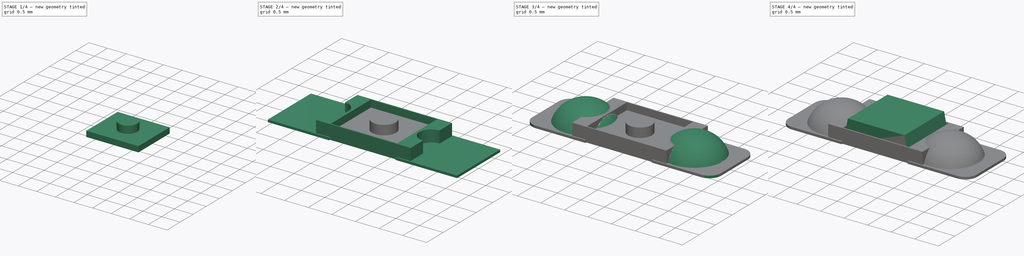
[diagram: build sequence overview — one tinted view per stage of 4, left to right]
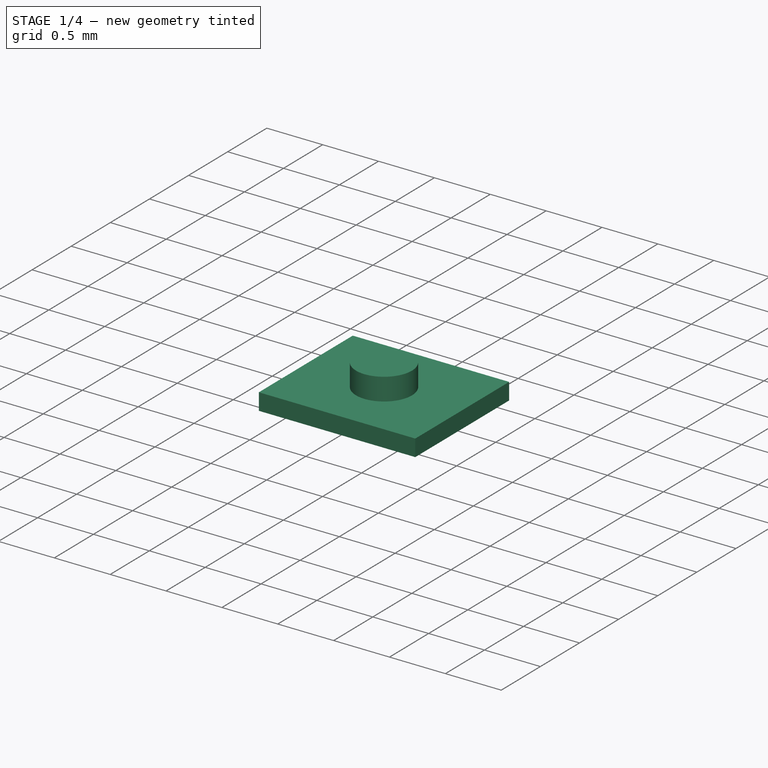
[diagram: stage 1 of 4 — iso view after this stage's code; geometry added in this stage tinted green]
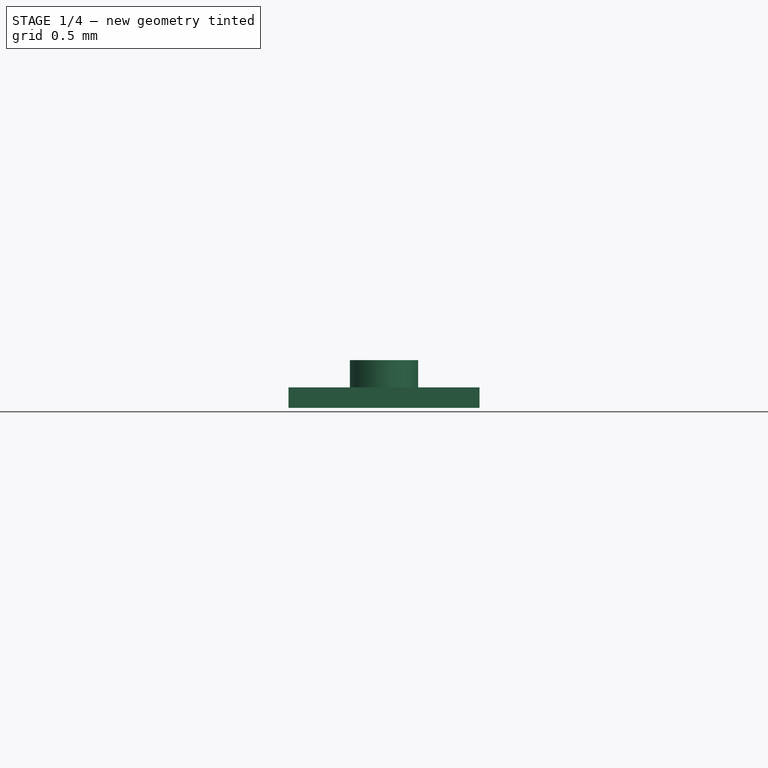
[diagram: stage 1 of 4 — front view after this stage's code; geometry added in this stage tinted green]
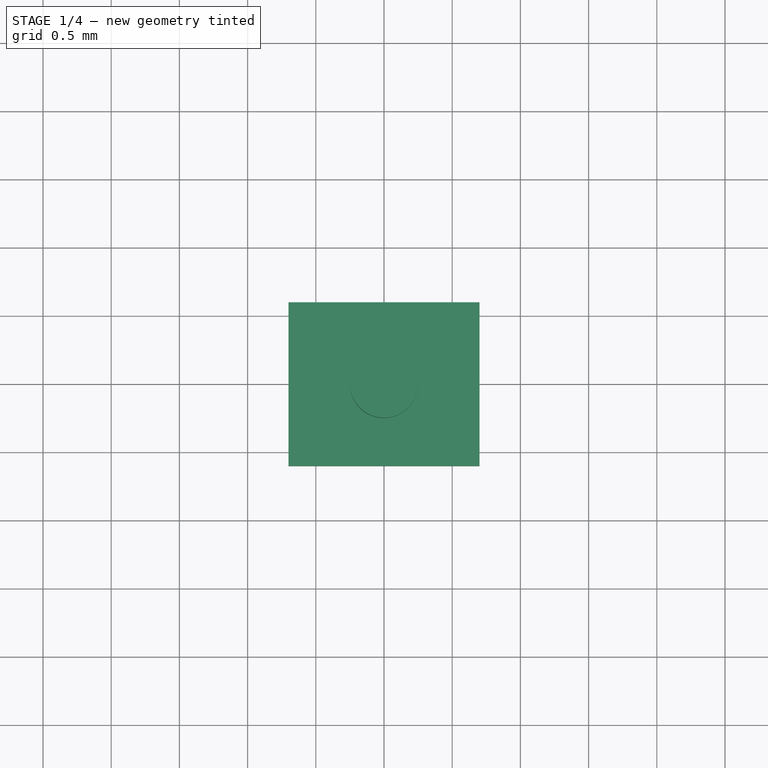
[diagram: stage 1 of 4 — top view after this stage's code; geometry added in this stage tinted green]
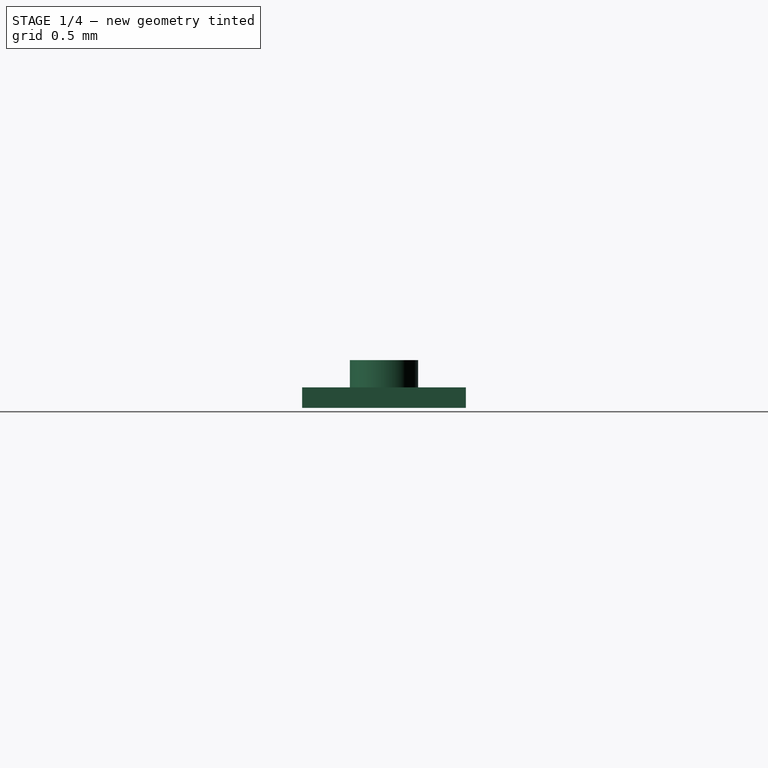
[diagram: stage 1 of 4 — right view after this stage's code; geometry added in this stage tinted green]
FCSTD DOCUMENT  (FreeCAD 0.18.4R)
Label: led arduino uno
License: All rights reserved
LicenseURL: http://en.wikipedia.org/wiki/All_rights_reserved
objects: Sketcher::SketchObject×7, PartDesign::Pad×5, PartDesign::Body×4, PartDesign::Line×1, PartDesign::Revolution×1, PartDesign::Mirrored×1, PartDesign::Thickness×1, PartDesign::Fillet×1, PartDesign::Pocket×1, App::Part×1
note: 29 computed .brp shape members not serialized (recipe doc carries the construction recipe); baked Part::Feature solids carry a one-line shape summary decoded from their .brp

FEATURE [PartDesign::Body] Body001  label="weld"
  Group = -> [Sketch002,Pad002,Sketch003,DatumLine,Revolution,Mirrored,Fillet]
  Origin = -> Origin002
  Tip = -> Fillet
FEATURE [Sketcher::SketchObject] Sketch005
  MapMode = 5
  Support = -> [XY_Plane004]
  sketch-geometry (4):
    g0: LineSegment StartX=-0.7 StartY=0.6 StartZ=0 EndX=0.7 EndY=0.6 EndZ=0
    g1: LineSegment StartX=0.7 StartY=-0.6 StartZ=0 EndX=-0.7 EndY=-0.6 EndZ=0
    g2: LineSegment StartX=-0.7 StartY=-0.6 StartZ=0 EndX=-0.7 EndY=0.6 EndZ=0
    g3: LineSegment StartX=0.7 StartY=0.6 StartZ=0 EndX=0.7 EndY=-0.6 EndZ=0
  constraints (11):
    c: Coincident(g3,g1)
    c: Coincident(g1,g2)
    c: Horizontal(g0)
    c: Horizontal(g1)
    c: Vertical(g2)
    c: Vertical(g3)
    c: Symmetric(g1,g0,g-1)
    c: DistanceY(g1,g0) = 1.2
    c: DistanceX(g1,g1) = 1.4
    c: Coincident(g2,g0)
    c: Coincident(g3,g0)
FEATURE [PartDesign::Pad] Pad004
  Length = 0.15
  Length2 = 100
  Profile = -> Sketch005
  Refine = true
  Type = 0
FEATURE [PartDesign::Body] Body  label="led base"
  Group = -> [Sketch,Pad,Sketch007,Pocket]
  Origin = -> Origin001
  Tip = -> Pocket
FEATURE [Sketcher::SketchObject] Sketch008
  MapMode = 5
  Placement = pos=(0,0,0.15) rot=(0,0,1;0rad)
  Support = -> [Pad004]
  sketch-geometry (1):
    g0: Circle CenterX=0 CenterY=0 CenterZ=0 NormalX=0 NormalY=0 NormalZ=1 AngleXU=0 Radius=0.25
  constraints (2):
    c: Coincident(g0,g-1)
    c: Radius(g0) = 0.25
FEATURE [PartDesign::Pad] Pad005
  BaseFeature = -> Pad004
  Length = 0.2
  Length2 = 100
  Profile = -> Sketch008
  Refine = true
  Type = 0
FEATURE [PartDesign::Body] Body003  label="led"
  Group = -> [Sketch005,Pad004,Sketch008,Pad005]
  Origin = -> Origin004
  Placement = pos=(0,0,0.15) rot=(0,0,1;0rad)
  Tip = -> Pad005
FEATURE [App::Part] Part
  Group = -> [Body,Body001,Body002,Body003]
  Origin = -> Origin
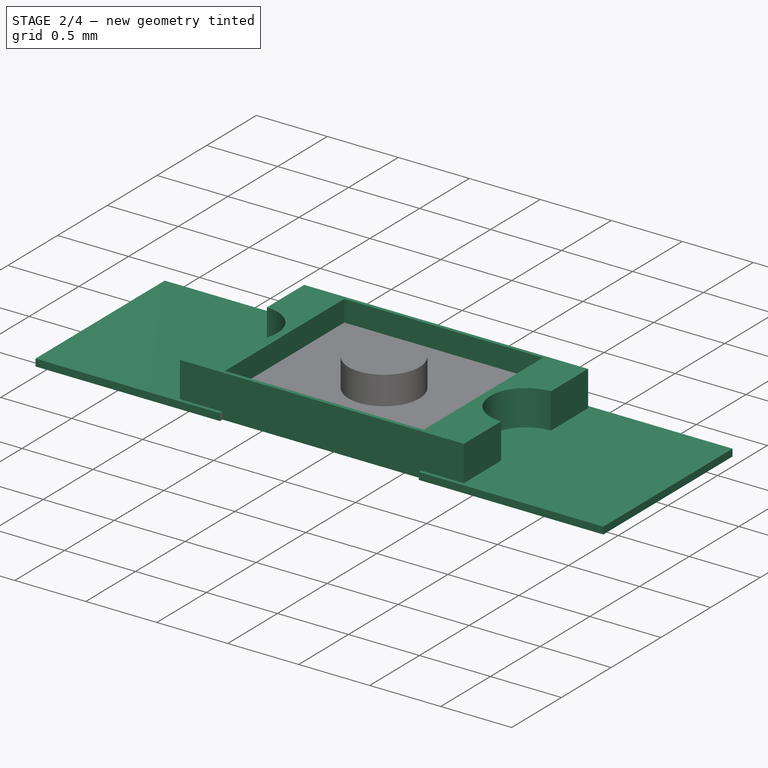
[diagram: stage 2 of 4 — iso view after this stage's code; geometry added in this stage tinted green]
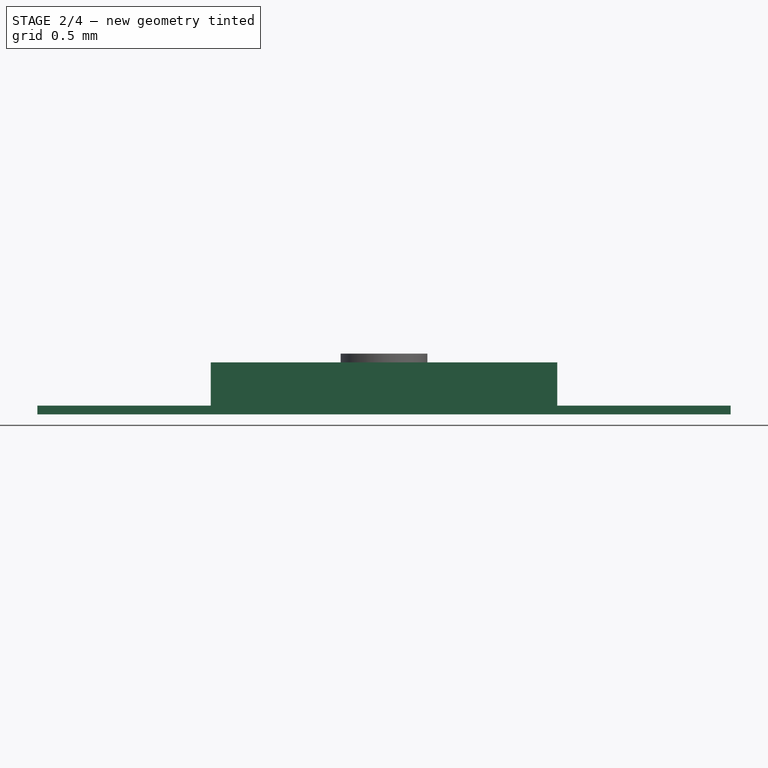
[diagram: stage 2 of 4 — front view after this stage's code; geometry added in this stage tinted green]
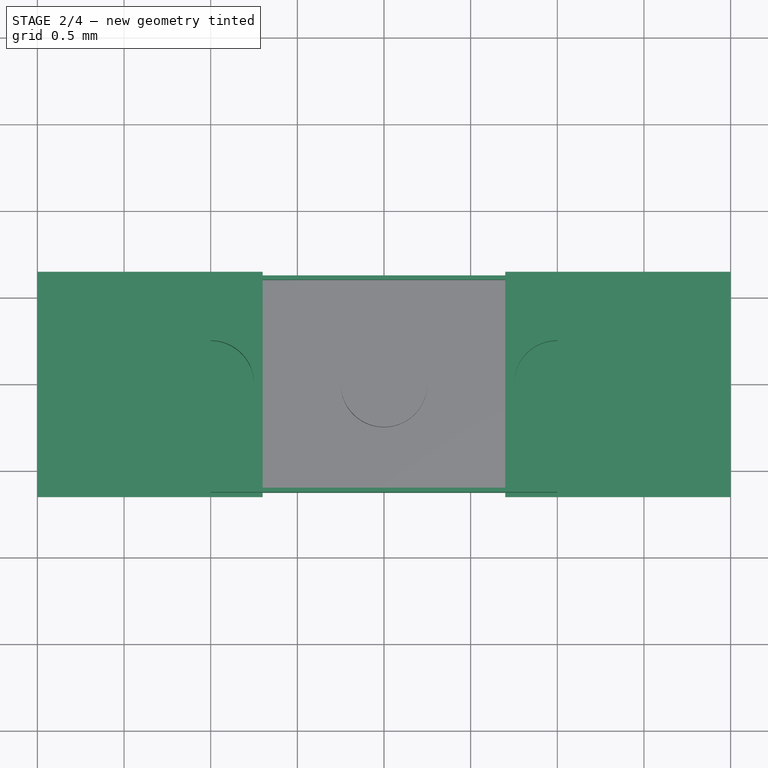
[diagram: stage 2 of 4 — top view after this stage's code; geometry added in this stage tinted green]
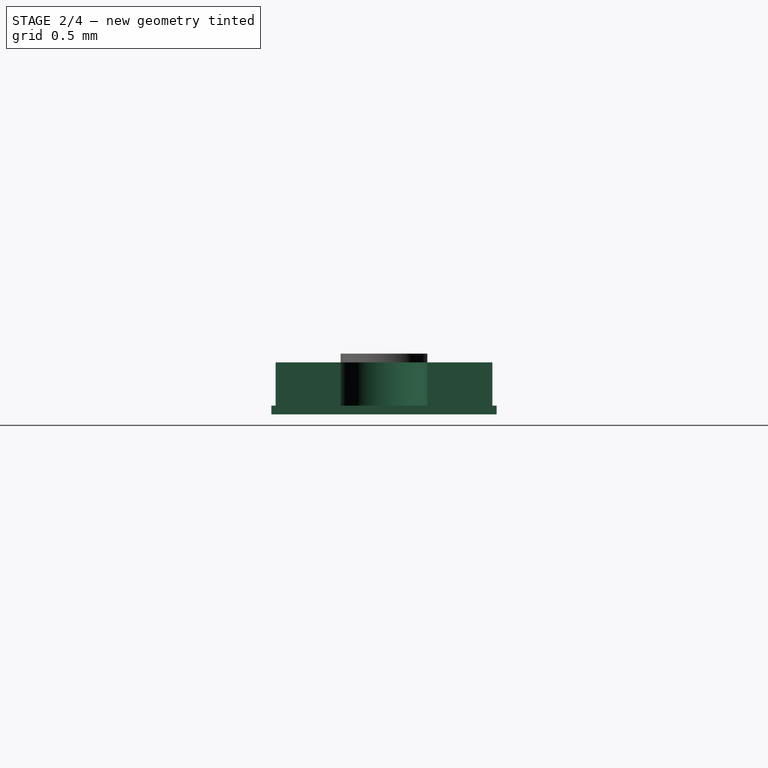
[diagram: stage 2 of 4 — right view after this stage's code; geometry added in this stage tinted green]
FEATURE [Sketcher::SketchObject] Sketch
  MapMode = 5
  Support = -> [XY_Plane001]
  sketch-geometry (8):
    g0: LineSegment StartX=-1 StartY=0.625 StartZ=0 EndX=1 EndY=0.625 EndZ=0
    g1: LineSegment StartX=1 StartY=-0.625 StartZ=0 EndX=-1 EndY=-0.625 EndZ=0
    g2: LineSegment StartX=-1 StartY=-0.625 StartZ=0 EndX=-1 EndY=-0.25 EndZ=0
    g3: ArcOfCircle CenterX=-1 CenterY=0 CenterZ=0 NormalX=0 NormalY=0 NormalZ=1 AngleXU=0 Radius=0.25 StartAngle=4.71239 EndAngle=7.85398
    g4: ArcOfCircle CenterX=1 CenterY=0 CenterZ=0 NormalX=0 NormalY=0 NormalZ=1 AngleXU=0 Radius=0.25 StartAngle=1.5708 EndAngle=4.71239
    g5: LineSegment StartX=1 StartY=-0.25 StartZ=0 EndX=1 EndY=-0.625 EndZ=0
    g6: LineSegment StartX=-1 StartY=0.25 StartZ=0 EndX=-1 EndY=0.625 EndZ=0
    g7: LineSegment StartX=1 StartY=0.25 StartZ=0 EndX=1 EndY=0.625 EndZ=0
  constraints (24):
    c: Coincident(g5,g1)
    c: Coincident(g1,g2)
    c: Coincident(g6,g0)
    c: Horizontal(g0)
    c: Horizontal(g1)
    c: Vertical(g2)
    c: Coincident(g6,g3)
    c: Tangent(g2,g6)
    c: Coincident(g2,g3)
    c: Coincident(g4,g5)
    c: Coincident(g7,g4)
    c: Coincident(g7,g0)
    c: Vertical(g7)
    c: Vertical(g5)
    c: Equal(g6,g2)
    c: Equal(g2,g7)
    c: Equal(g7,g5)
    c: Symmetric(g1,g0,g-1)
    c: Vertical(g4,g4)
    c: Vertical(g3,g3)
    c: Radius(g3) = 0.25
    c: Vertical(g4,g4)
    c: DistanceY(g1,g0) = 1.25
    c: DistanceX(g1,g1) = 2
FEATURE [PartDesign::Pad] Pad
  Length = 0.3
  Length2 = 100
  Profile = -> Sketch
  Refine = true
  Type = 0
FEATURE [Sketcher::SketchObject] Sketch002
  MapMode = 5
  Support = -> [XY_Plane002]
  sketch-geometry (12):
    g0: LineSegment StartX=-2 StartY=0.65 StartZ=0 EndX=-0.7 EndY=0.65 EndZ=0
    g1: LineSegment StartX=-0.7 StartY=0.65 StartZ=0 EndX=-0.7 EndY=0.1 EndZ=0
    g2: LineSegment StartX=-0.7 StartY=-0.65 StartZ=0 EndX=-2 EndY=-0.65 EndZ=0
    g3: LineSegment StartX=-2 StartY=-0.65 StartZ=0 EndX=-2 EndY=0.65 EndZ=0
    g4: LineSegment StartX=0.7 StartY=0.65 StartZ=0 EndX=2 EndY=0.65 EndZ=0
    g5: LineSegment StartX=2 StartY=0.65 StartZ=0 EndX=2 EndY=-0.65 EndZ=0
    g6: LineSegment StartX=2 StartY=-0.65 StartZ=0 EndX=0.7 EndY=-0.65 EndZ=0
    g7: LineSegment StartX=0.7 StartY=-0.65 StartZ=0 EndX=0.7 EndY=-0.1 EndZ=0
    g8: LineSegment StartX=-0.7 StartY=0.1 StartZ=0 EndX=0.7 EndY=0.1 EndZ=0
    g9: LineSegment StartX=0.7 StartY=-0.1 StartZ=0 EndX=-0.7 EndY=-0.1 EndZ=0
    g10: LineSegment StartX=0.7 StartY=0.1 StartZ=0 EndX=0.7 EndY=0.65 EndZ=0
    g11: LineSegment StartX=-0.7 StartY=-0.1 StartZ=0 EndX=-0.7 EndY=-0.65 EndZ=0
  constraints (33):
    c: Coincident(g0,g1)
    c: Coincident(g11,g2)
    c: Coincident(g2,g3)
    c: Coincident(g3,g0)
    c: Horizontal(g0)
    c: Horizontal(g2)
    c: Vertical(g1)
    c: Vertical(g3)
    c: Coincident(g4,g5)
    c: Coincident(g5,g6)
    c: Coincident(g6,g7)
    c: Coincident(g10,g4)
    c: Horizontal(g4)
    c: Horizontal(g6)
    c: Vertical(g5)
    c: Vertical(g7)
    c: Horizontal(g8)
    c: Tangent(g7,g10)
    c: Tangent(g1,g11)
    c: Coincident(g8,g10)
    c: Coincident(g7,g9)
    c: Coincident(g9,g11)
    c: Coincident(g1,g8)
    c: Horizontal(g9)
    c: Equal(g4,g0)
    c: Equal(g11,g7)
    c: Equal(g10,g1)
    c: Equal(g1,g11)
    c: Symmetric(g1,g7,g-1)
    c: DistanceY(g3,g3) = 1.3
    c: Equal(g0,g3)
    c: DistanceX(g0,g-1) = 0.7
    c: DistanceY(g7,g8) = 0.2
FEATURE [PartDesign::Pad] Pad002
  Length = 0.05
  Length2 = 100
  Profile = -> Sketch002
  Refine = true
  Type = 0
FEATURE [Sketcher::SketchObject] Sketch007
  MapMode = 5
  Placement = pos=(0,0,0.3) rot=(0,0,1;0rad)
  Support = -> [Pad]
  sketch-geometry (4):
    g0: LineSegment StartX=-0.7 StartY=0.6 StartZ=0 EndX=0.7 EndY=0.6 EndZ=0
    g1: LineSegment StartX=0.7 StartY=0.6 StartZ=0 EndX=0.7 EndY=-0.6 EndZ=0
    g2: LineSegment StartX=0.7 StartY=-0.6 StartZ=0 EndX=-0.7 EndY=-0.6 EndZ=0
    g3: LineSegment StartX=-0.7 StartY=-0.6 StartZ=0 EndX=-0.7 EndY=0.6 EndZ=0
  constraints (11):
    c: Coincident(g0,g1)
    c: Coincident(g1,g2)
    c: Coincident(g2,g3)
    c: Coincident(g3,g0)
    c: Horizontal(g0)
    c: Horizontal(g2)
    c: Vertical(g1)
    c: Vertical(g3)
    c: Symmetric(g1,g0,g-1)
    c: DistanceX(g0,g0) = 1.4
    c: DistanceY(g1,g1) = 1.2
FEATURE [PartDesign::Pocket] Pocket
  BaseFeature = -> Pad
  Length = 0.15
  Length2 = 100
  Profile = -> Sketch007
  Refine = true
  Type = 0
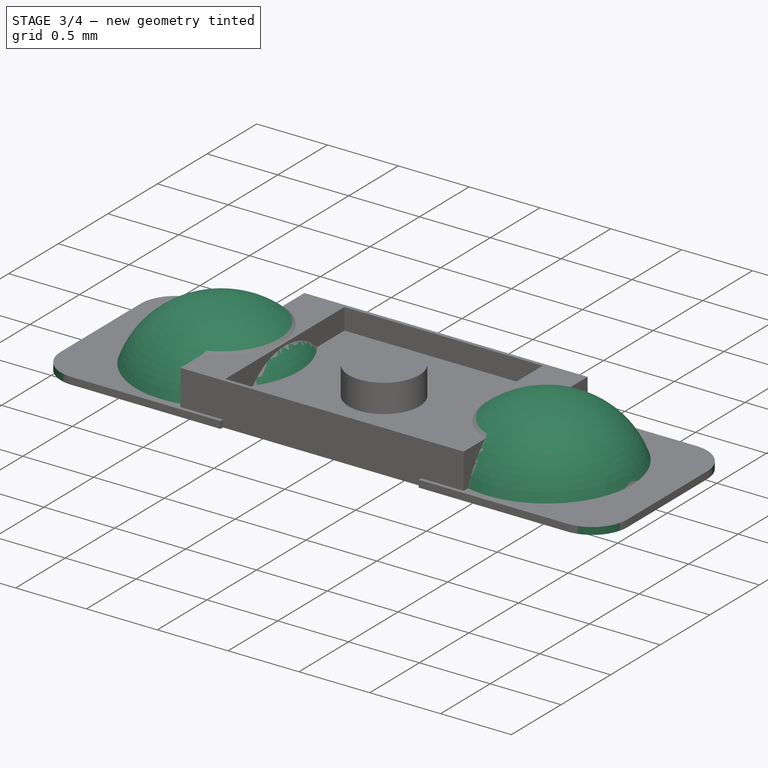
[diagram: stage 3 of 4 — iso view after this stage's code; geometry added in this stage tinted green]
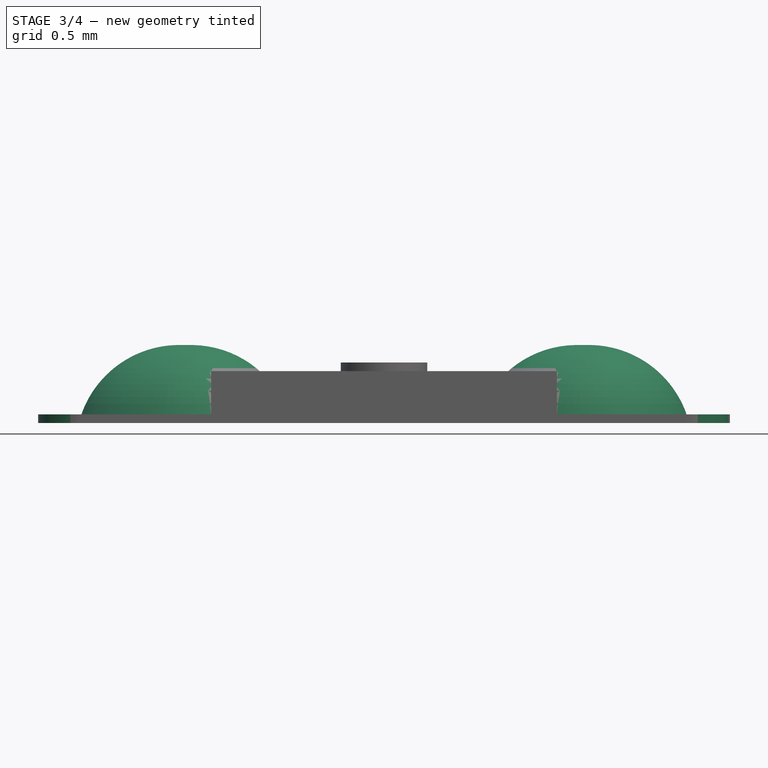
[diagram: stage 3 of 4 — front view after this stage's code; geometry added in this stage tinted green]
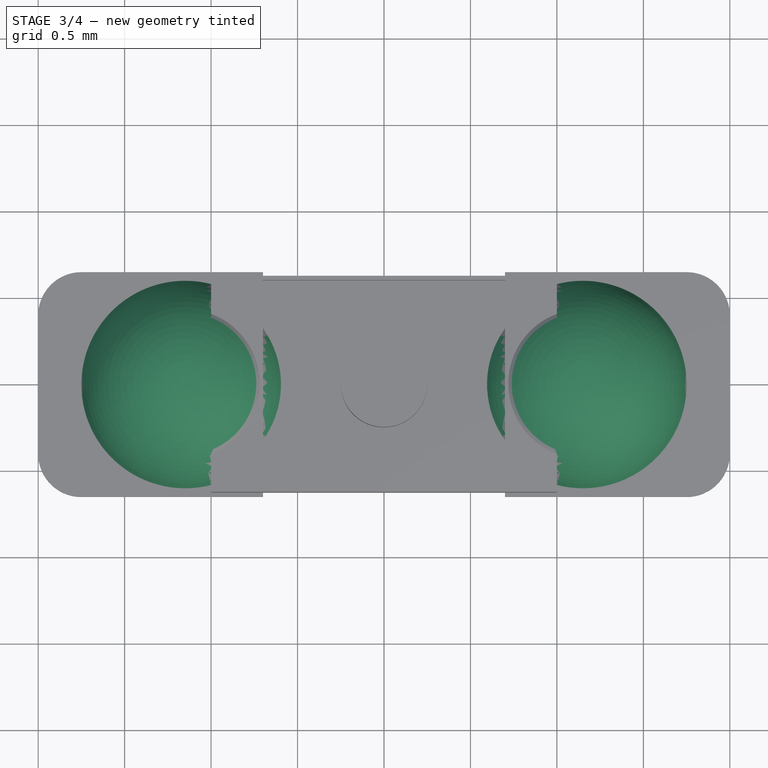
[diagram: stage 3 of 4 — top view after this stage's code; geometry added in this stage tinted green]
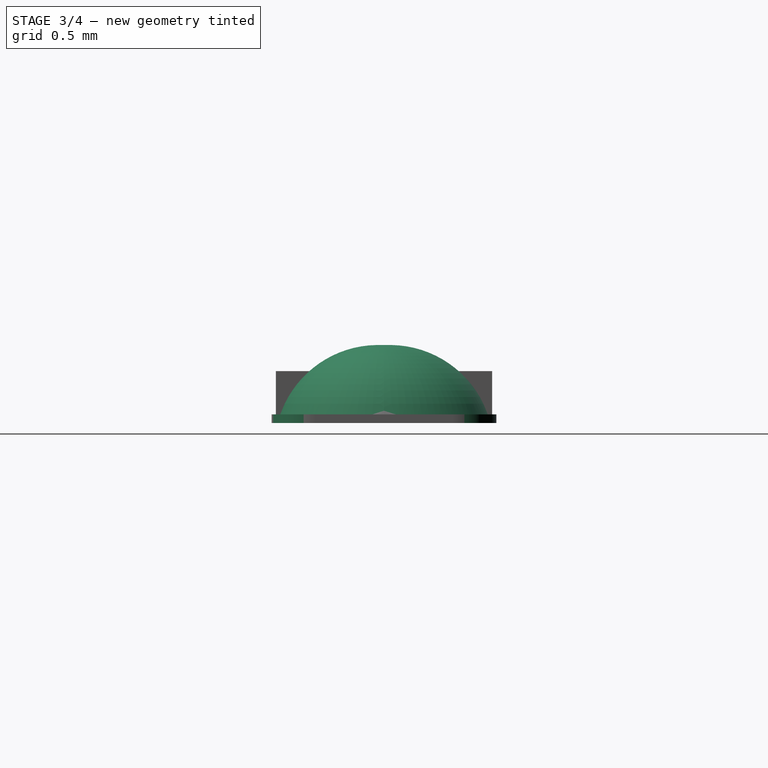
[diagram: stage 3 of 4 — right view after this stage's code; geometry added in this stage tinted green]
FEATURE [Sketcher::SketchObject] Sketch003
  ExternalGeometry = -> [Pad002]
  MapMode = 5
  Placement = pos=(0,0,0) rot=(1,0,0;1.5708rad)
  Support = -> [XZ_Plane002]
  sketch-geometry (3):
    g0: ArcOfCircle CenterX=-1.18398 CenterY=-0.149037 CenterZ=0 NormalX=0 NormalY=0 NormalZ=1 AngleXU=0 Radius=0.6 StartAngle=1.51414 EndAngle=2.80346
    g1: LineSegment StartX=-1.15 StartY=0.45 StartZ=0 EndX=-1.15 EndY=0.05 EndZ=0
    g2: LineSegment StartX=-1.15 StartY=0.05 StartZ=0 EndX=-1.75 EndY=0.05 EndZ=0
  constraints (10):
    c: Coincident(g1,g0)
    c: Vertical(g1)
    c: Coincident(g2,g1)
    c: Coincident(g2,g0)
    c: Horizontal(g2)
    c: DistanceY(g1,g1) = 0.4
    c: Radius(g0) = 0.6
    c: PointOnObject(g1,g-3)
    c: DistanceX(g1,g-1) = 1.15
    c: DistanceX(g2,g2) = 0.6
FEATURE [PartDesign::Line] DatumLine
  AttacherType = Attacher::AttachEngineLine
  MapMode = 29
  Placement = pos=(-1.15,0,0) rot=(0,1,0;3.14159rad)
  Support = -> [Sketch003]
FEATURE [PartDesign::Revolution] Revolution
  Angle = 360
  Axis = (0,-2e-16,-1)
  Base = (-1.15,0,0)
  BaseFeature = -> Pad002
  Profile = -> Sketch003
  ReferenceAxis = -> DatumLine
  Refine = true
FEATURE [PartDesign::Mirrored] Mirrored
  BaseFeature = -> Revolution
  MirrorPlane = -> Sketch003 [V_Axis]
  Originals = -> [Revolution]
  Refine = true
FEATURE [PartDesign::Body] Body002  label="cap"
  Group = -> [Sketch004,Pad003,Thickness]
  Origin = -> Origin003
  Placement = pos=(0,0,0.3) rot=(0,0,1;0rad)
  Tip = -> Thickness
FEATURE [PartDesign::Fillet] Fillet
  Base = -> Mirrored [Edge36,Edge34,Edge5,Edge1]
  BaseFeature = -> Mirrored
  Radius = 0.25
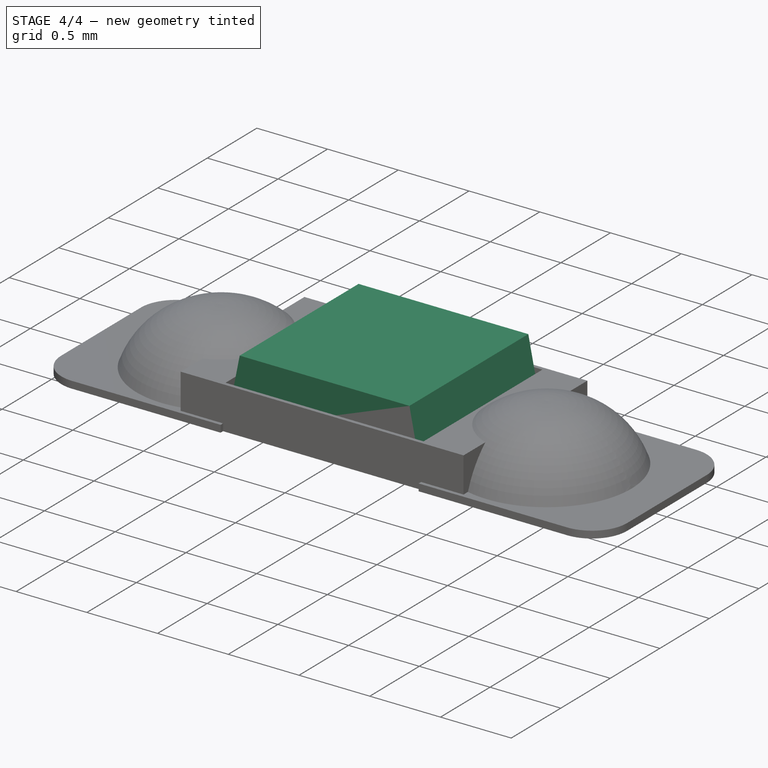
[diagram: stage 4 of 4 — iso view after this stage's code; geometry added in this stage tinted green]
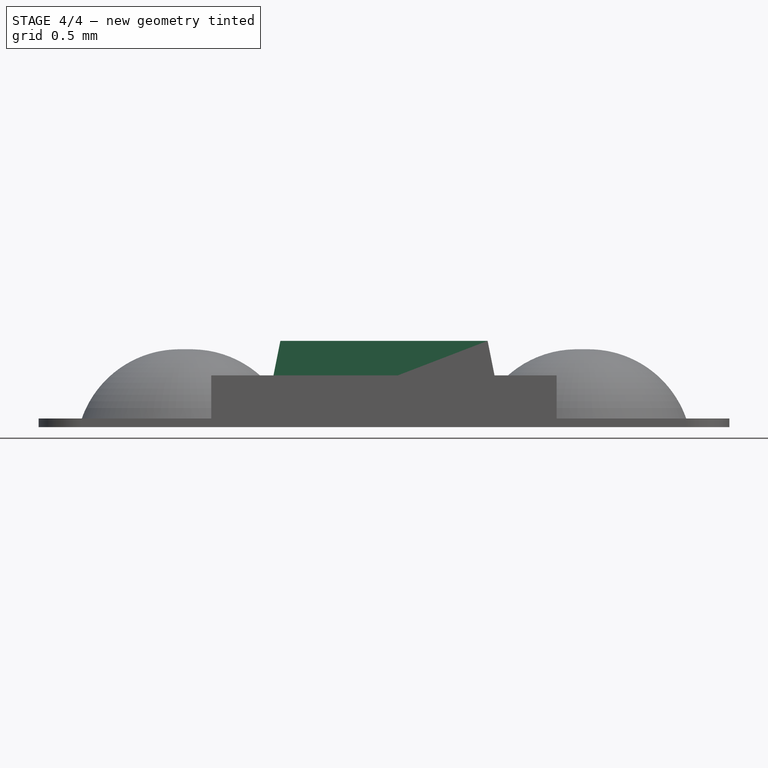
[diagram: stage 4 of 4 — front view after this stage's code; geometry added in this stage tinted green]
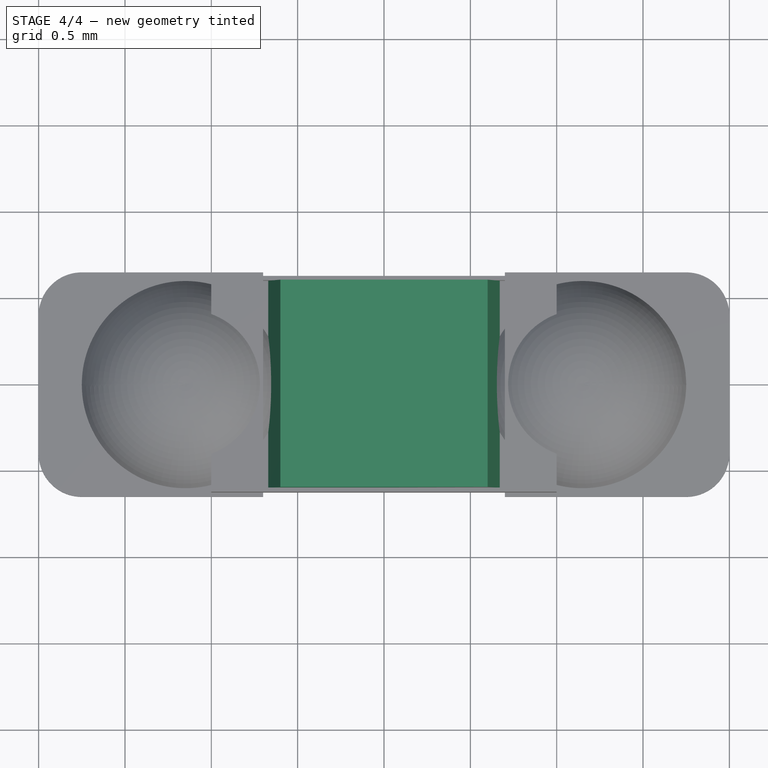
[diagram: stage 4 of 4 — top view after this stage's code; geometry added in this stage tinted green]
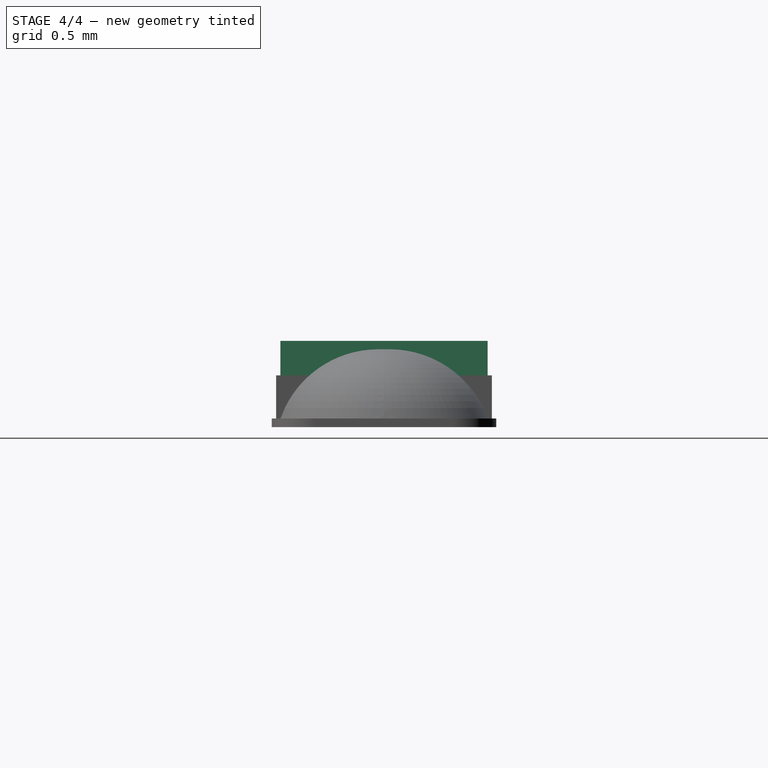
[diagram: stage 4 of 4 — right view after this stage's code; geometry added in this stage tinted green]
FEATURE [Sketcher::SketchObject] Sketch004
  MapMode = 5
  Placement = pos=(0,0,0) rot=(1,0,0;1.5708rad)
  Support = -> [XZ_Plane003]
  sketch-geometry (4):
    g0: LineSegment StartX=-0.6 StartY=0.5 StartZ=0 EndX=0.6 EndY=0.5 EndZ=0
    g1: LineSegment StartX=0.6 StartY=0.5 StartZ=0 EndX=0.7 EndY=0 EndZ=0
    g2: LineSegment StartX=0.7 StartY=0 StartZ=0 EndX=-0.7 EndY=0 EndZ=0
    g3: LineSegment StartX=-0.7 StartY=0 StartZ=0 EndX=-0.6 EndY=0.5 EndZ=0
  constraints (10):
    c: Coincident(g0,g1)
    c: Coincident(g1,g2)
    c: Coincident(g2,g3)
    c: Coincident(g3,g0)
    c: Horizontal(g2)
    c: DistanceX(g0,g0) = 1.2
    c: Symmetric(g2,g1,g-1)
    c: Symmetric(g0,g0,g-2)
    c: DistanceX(g2,g2) = 1.4
    c: DistanceY(g1,g0) = 0.5
FEATURE [PartDesign::Pad] Pad003
  Length = 1.2
  Length2 = 100
  Midplane = true
  Placement = pos=(0,0,0) rot=(1,0,0;1.5708rad)
  Profile = -> Sketch004
  Refine = true
  Type = 0
FEATURE [PartDesign::Thickness] Thickness
  Base = -> Pad003 [Face3]
  BaseFeature = -> Pad003
  Join = 0
  Mode = 0
  Reversed = true
  Value = 0.01
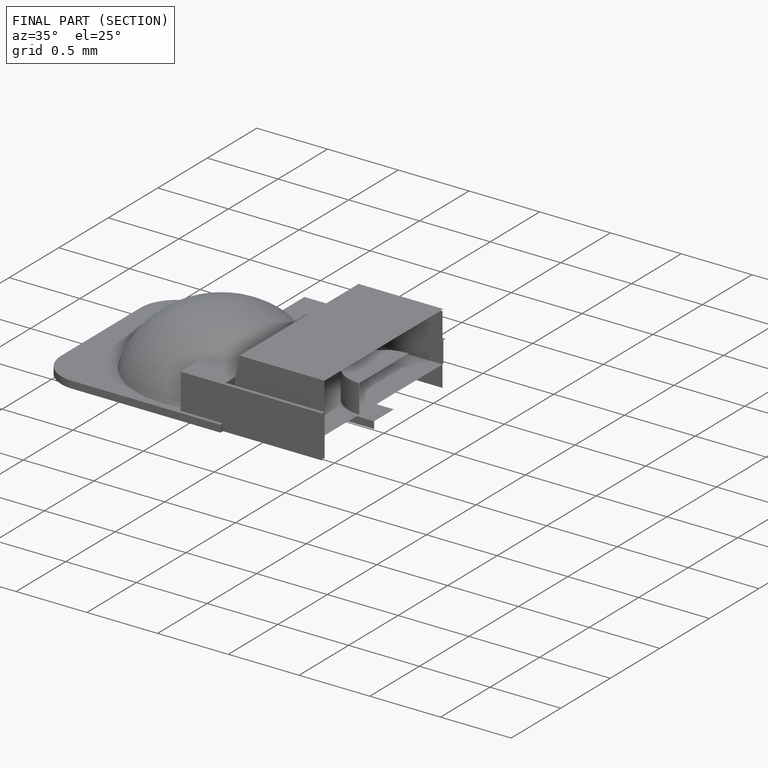
[diagram: finished part — half-section view (interior)]
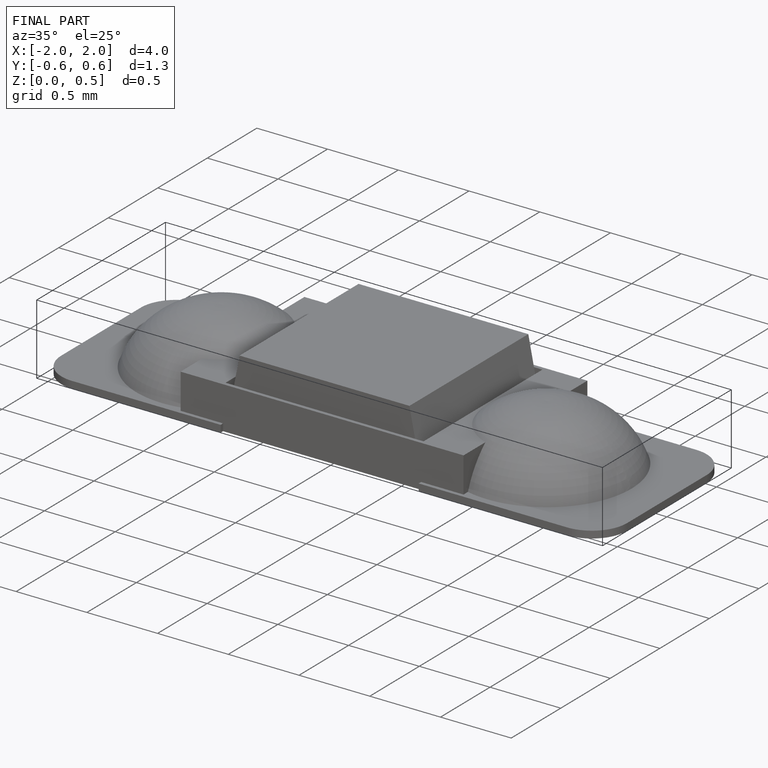
[diagram: finished part — iso view with bounding-box wireframe]
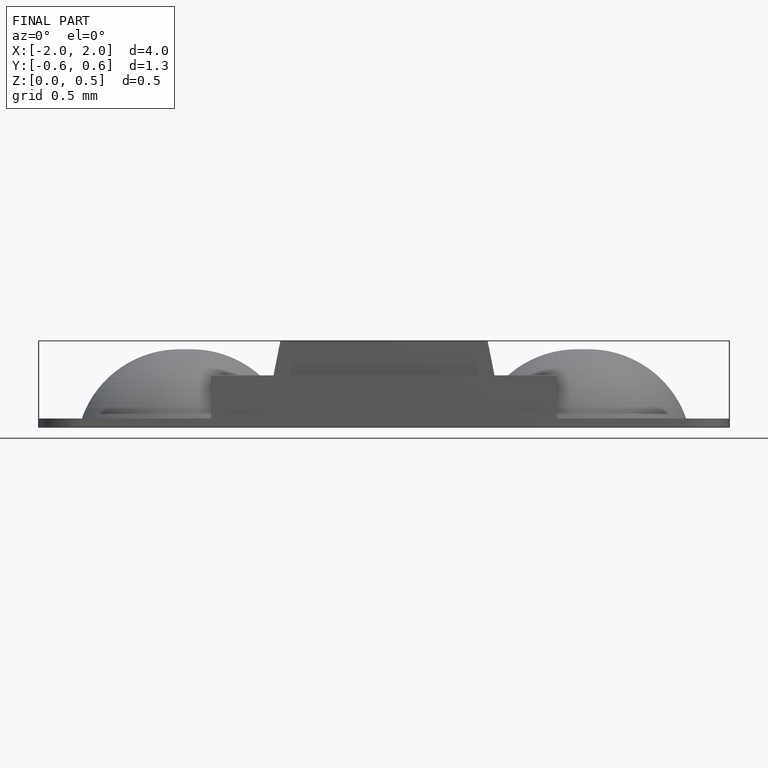
[diagram: finished part — front view with bounding-box wireframe]
